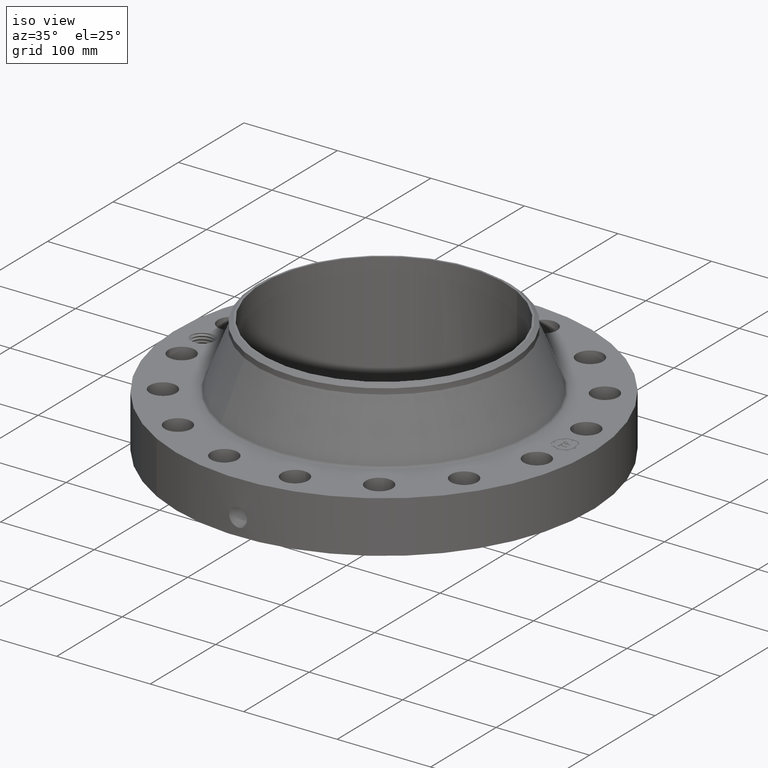
[diagram: clean part render]
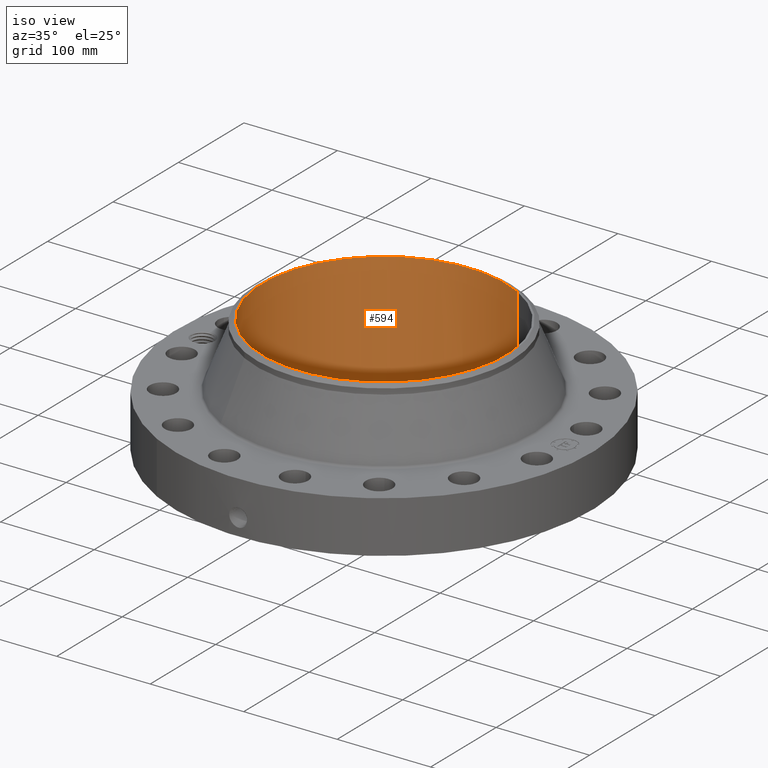
[diagram: same view with one face highlighted and labeled with its STEP entity id]
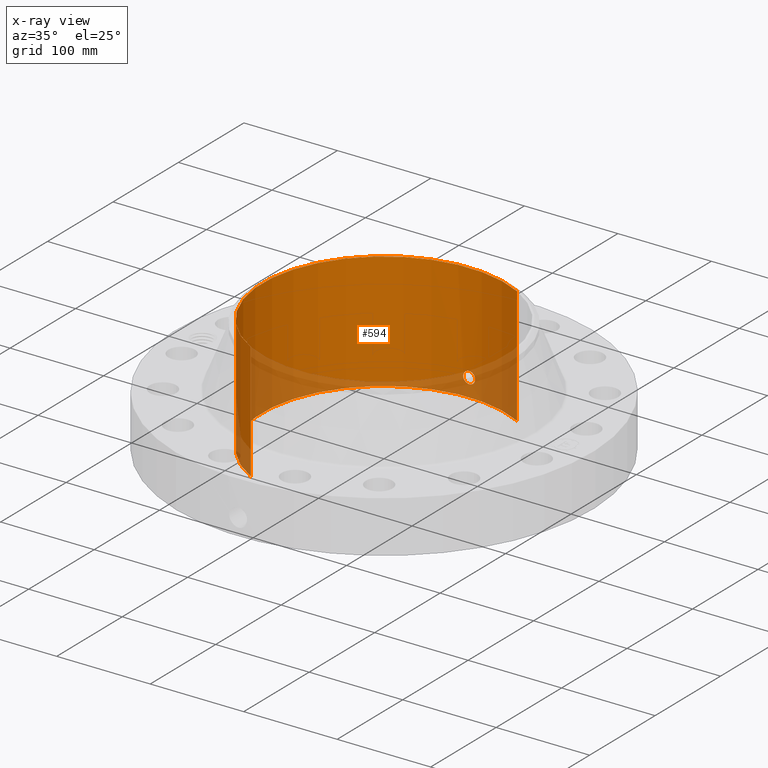
[diagram: x-ray of the same camera — body ghosted, the highlighted face saturated]
A machine part, iso view. The second image highlights one B-rep face of the part: STEP entity #594.
The next image is the same camera in x-ray: the body ghosted, the highlighted face saturated — about 19% of this face is hidden behind the body in this view.
In plain terms, the highlighted cylindrical surface (partial cylindrical patch) has radius 130.175 mm, axis along (0, 0, -1).
Its self-contained STEP definition (entity closure, byte-faithful):
#232=AXIS2_PLACEMENT_3D('Cylinder Axis2P3D',#229,#230,#231) ;
#533=AXIS2_PLACEMENT_3D('Circle Axis2P3D',#531,#532,$) ;
#543=AXIS2_PLACEMENT_3D('Circle Axis2P3D',#541,#542,$) ;
#229=CARTESIAN_POINT('Axis2P3D Location',(0.,0.,2.46650000001)) ;
#238=CARTESIAN_POINT('Vertex',(2.45705588536,4.49761062971,4.93300000002)) ;
#240=CARTESIAN_POINT('Vertex',(-2.45705588536,-4.49761062971,4.93300000002)) ;
#243=CARTESIAN_POINT('Line Origine',(2.45705588536,4.49761062971,2.46650000001)) ;
#247=CARTESIAN_POINT('Vertex',(2.45705588536,4.49761062971,-1.09099081475E-014)) ;
#254=CARTESIAN_POINT('Vertex',(-2.45705588536,-4.49761062971,-1.09099081475E-014)) ;
#257=CARTESIAN_POINT('Line Origine',(-2.45705588536,-4.49761062971,2.46650000001)) ;
#531=CARTESIAN_POINT('Axis2P3D Location',(0.,0.,4.93300000002)) ;
#541=CARTESIAN_POINT('Axis2P3D Location',(0.,0.,-1.1189649382E-014)) ;
#553=CARTESIAN_POINT('Control Point',(0.219395640473,5.12030180294,0.869856384655)) ;
#554=CARTESIAN_POINT('Control Point',(0.206921712598,5.12083628811,0.892689756472)) ;
#555=CARTESIAN_POINT('Control Point',(0.191478223033,5.1214599581,0.913898740219)) ;
#556=CARTESIAN_POINT('Control Point',(0.173345121691,5.12212462629,0.932970346542)) ;
#557=CARTESIAN_POINT('Control Point',(0.112136130153,5.12404706538,0.982449404613)) ;
#558=CARTESIAN_POINT('Control Point',(0.0349811268743,5.12529606751,1.00597371454)) ;
#559=CARTESIAN_POINT('Control Point',(-0.0195611147557,5.12538937662,1.00761228149)) ;
#560=CARTESIAN_POINT('Control Point',(-0.124146713528,5.12401457158,0.982469527338)) ;
#561=CARTESIAN_POINT('Control Point',(-0.203191745957,5.12116894614,0.909557157992)) ;
#562=CARTESIAN_POINT('Control Point',(-0.232168380024,5.11976797883,0.863341695428)) ;
#563=CARTESIAN_POINT('Control Point',(-0.255833478873,5.11861466564,0.785185721671)) ;
#564=CARTESIAN_POINT('Control Point',(-0.248295230025,5.11898172919,0.705797894227)) ;
#565=CARTESIAN_POINT('Control Point',(-0.24206115742,5.1192897534,0.679215455516)) ;
#566=CARTESIAN_POINT('Control Point',(-0.232323127519,5.11974788358,0.653807221661)) ;
#567=CARTESIAN_POINT('Control Point',(-0.219395640473,5.12030180294,0.630143615351)) ;
#568=CARTESIAN_POINT('Vertex',(0.219395640473,5.12030180294,0.869856384655)) ;
#570=CARTESIAN_POINT('Vertex',(-0.219395640473,5.12030180294,0.630143615351)) ;
#574=CARTESIAN_POINT('Control Point',(-0.219395640473,5.12030180294,0.630143615351)) ;
#575=CARTESIAN_POINT('Control Point',(-0.206921712597,5.12083628811,0.607310243532)) ;
#576=CARTESIAN_POINT('Control Point',(-0.191478223031,5.1214599581,0.586101259785)) ;
#577=CARTESIAN_POINT('Control Point',(-0.173345121691,5.12212462629,0.567029653465)) ;
#578=CARTESIAN_POINT('Control Point',(-0.112136130148,5.12404706538,0.517550595389)) ;
#579=CARTESIAN_POINT('Control Point',(-0.0349811268602,5.12529606751,0.494026285458)) ;
#580=CARTESIAN_POINT('Control Point',(0.0195611147456,5.12538937662,0.492387718513)) ;
#581=CARTESIAN_POINT('Control Point',(0.124146713518,5.12401457158,0.517530472663)) ;
#582=CARTESIAN_POINT('Control Point',(0.203191745947,5.12116894614,0.590442842006)) ;
#583=CARTESIAN_POINT('Control Point',(0.232168380028,5.11976797882,0.636658304594)) ;
#584=CARTESIAN_POINT('Control Point',(0.255833478873,5.11861466564,0.714814278343)) ;
#585=CARTESIAN_POINT('Control Point',(0.248295230024,5.11898172919,0.79420210578)) ;
#586=CARTESIAN_POINT('Control Point',(0.24206115742,5.1192897534,0.820784544491)) ;
#587=CARTESIAN_POINT('Control Point',(0.232323127519,5.11974788358,0.846192778346)) ;
#588=CARTESIAN_POINT('Control Point',(0.219395640473,5.12030180294,0.869856384655)) ;
#230=DIRECTION('Axis2P3D Direction',(0.,0.,-0.0393700787402)) ;
#231=DIRECTION('Axis2P3D XDirection',(-0.0188750212049,-0.0345504945626,0.)) ;
#244=DIRECTION('Vector Direction',(0.,0.,-0.0393700787402)) ;
#258=DIRECTION('Vector Direction',(0.,0.,-0.0393700787402)) ;
#532=DIRECTION('Axis2P3D Direction',(0.,0.,-0.0393700787402)) ;
#542=DIRECTION('Axis2P3D Direction',(0.,0.,-0.0393700787402)) ;
#245=VECTOR('Line Direction',#244,0.0393700787402) ;
#259=VECTOR('Line Direction',#258,0.0393700787402) ;
#547=ORIENTED_EDGE('',*,*,#535,.F.) ;
#548=ORIENTED_EDGE('',*,*,#261,.T.) ;
#549=ORIENTED_EDGE('',*,*,#545,.T.) ;
#550=ORIENTED_EDGE('',*,*,#249,.F.) ;
#591=ORIENTED_EDGE('',*,*,#572,.F.) ;
#592=ORIENTED_EDGE('',*,*,#589,.F.) ;
#593=FACE_BOUND('',#590,.T.) ;
#594=ADVANCED_FACE('PartBody',(#551,#593),#233,.F.) ;
#552=B_SPLINE_CURVE_WITH_KNOTS('',5,(#553,#554,#555,#556,#557,#558,#559,#560,#561,#562,#563,#564,#565,#566,#567),.UNSPECIFIED.,.F.,.U.,(6,3,3,3,6),(0.,4.67403971552,14.0221483127,23.3721380469,28.2161285265),.UNSPECIFIED.) ;
#573=B_SPLINE_CURVE_WITH_KNOTS('',5,(#574,#575,#576,#577,#578,#579,#580,#581,#582,#583,#584,#585,#586,#587,#588),.UNSPECIFIED.,.F.,.U.,(6,3,3,3,6),(0.,4.67403971577,14.022148314,23.372138047,28.2161285264),.UNSPECIFIED.) ;
#534=CIRCLE('generated circle',#533,5.12500000002) ;
#544=CIRCLE('generated circle',#543,5.12500000002) ;
#233=CYLINDRICAL_SURFACE('generated cylinder',#232,5.12500000002) ;
#249=EDGE_CURVE('',#239,#248,#246,.T.) ;
#261=EDGE_CURVE('',#241,#255,#260,.T.) ;
#535=EDGE_CURVE('',#241,#239,#534,.T.) ;
#545=EDGE_CURVE('',#255,#248,#544,.T.) ;
#572=EDGE_CURVE('',#569,#571,#552,.T.) ;
#589=EDGE_CURVE('',#571,#569,#573,.T.) ;
#546=EDGE_LOOP('',(#547,#548,#549,#550)) ;
#590=EDGE_LOOP('',(#591,#592)) ;
#551=FACE_OUTER_BOUND('',#546,.T.) ;
#246=LINE('Line',#243,#245) ;
#260=LINE('Line',#257,#259) ;
#239=VERTEX_POINT('',#238) ;
#241=VERTEX_POINT('',#240) ;
#248=VERTEX_POINT('',#247) ;
#255=VERTEX_POINT('',#254) ;
#569=VERTEX_POINT('',#568) ;
#571=VERTEX_POINT('',#570) ;